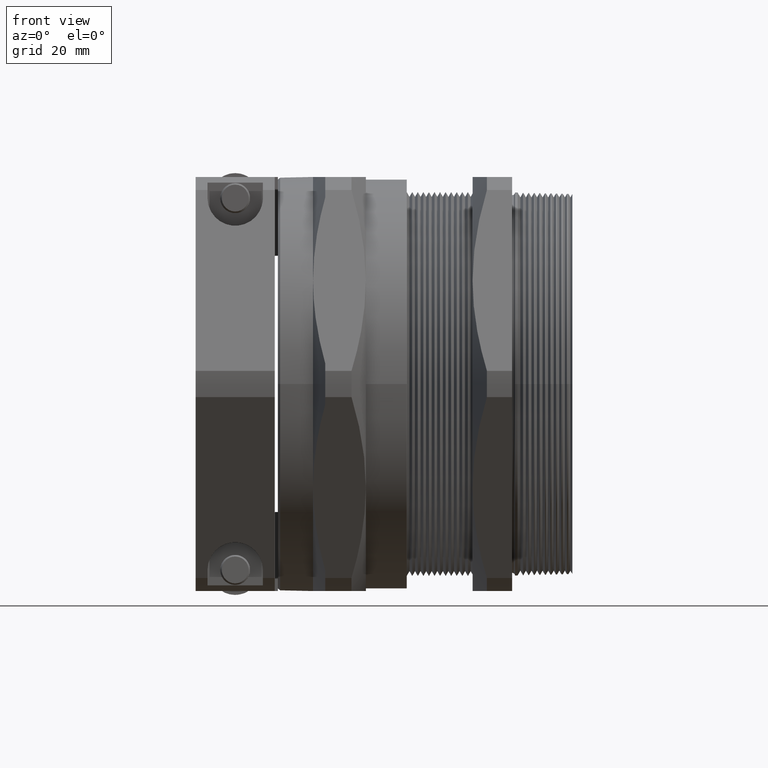
[diagram: clean part render]
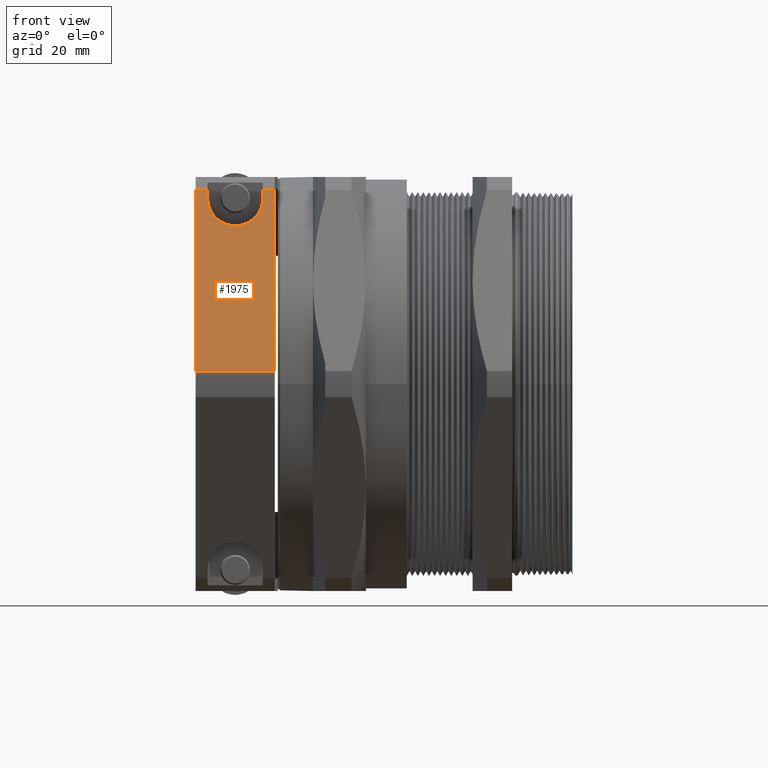
[diagram: same view with one face highlighted and labeled with its STEP entity id]
A machine part, front view. The second image highlights one B-rep face of the part: STEP entity #1975.
In plain terms, the highlighted planar face has unit normal (-0, -0.866, 0.5).
Its self-contained STEP definition (entity closure, byte-faithful):
#1943 = EDGE_CURVE ( 'NONE', #1968, #1944, #6847, .T. ) ;
#1944 = VERTEX_POINT ( 'NONE', #6843 ) ;
#1945 = ORIENTED_EDGE ( 'NONE', *, *, #1946, .F. ) ;
#1946 = EDGE_CURVE ( 'NONE', #1980, #1944, #6842, .T. ) ;
#1956 = VERTEX_POINT ( 'NONE', #6880 ) ;
#1957 = ORIENTED_EDGE ( 'NONE', *, *, #1958, .F. ) ;
#1958 = EDGE_CURVE ( 'NONE', #1959, #1956, #6879, .T. ) ;
#1959 = VERTEX_POINT ( 'NONE', #6875 ) ;
#1960 = ORIENTED_EDGE ( 'NONE', *, *, #1961, .F. ) ;
#1961 = EDGE_CURVE ( 'NONE', #1962, #1959, #6874, .T. ) ;
#1962 = VERTEX_POINT ( 'NONE', #6870 ) ;
#1963 = ORIENTED_EDGE ( 'NONE', *, *, #1964, .F. ) ;
#1964 = EDGE_CURVE ( 'NONE', #1965, #1962, #6869, .T. ) ;
#1965 = VERTEX_POINT ( 'NONE', #6865 ) ;
#1966 = ORIENTED_EDGE ( 'NONE', *, *, #1967, .T. ) ;
#1967 = EDGE_CURVE ( 'NONE', #1965, #1968, #6864, .T. ) ;
#1968 = VERTEX_POINT ( 'NONE', #6860 ) ;
#1975 = ADVANCED_FACE ( 'NONE', ( #6907 ), #6906, .T. ) ;
#1976 = EDGE_LOOP ( 'NONE', ( #1977, #1981, #1957, #1960, #1963, #1966, #2027, #1945 ) ) ;
#1977 = ORIENTED_EDGE ( 'NONE', *, *, #1978, .F. ) ;
#1978 = EDGE_CURVE ( 'NONE', #1979, #1980, #6901, .T. ) ;
#1979 = VERTEX_POINT ( 'NONE', #6897 ) ;
#1980 = VERTEX_POINT ( 'NONE', #6896 ) ;
#1981 = ORIENTED_EDGE ( 'NONE', *, *, #1982, .F. ) ;
#1982 = EDGE_CURVE ( 'NONE', #1956, #1979, #6894, .T. ) ;
#2027 = ORIENTED_EDGE ( 'NONE', *, *, #1943, .T. ) ;
#6839 = DIRECTION ( 'NONE',  ( 1.000000000000000000, -3.248221276105107800E-019, 0.0000000000000000000 ) ) ;
#6840 = VECTOR ( 'NONE', #6839, 39.37007874015748100 ) ;
#6841 = CARTESIAN_POINT ( 'NONE',  ( -5.773102463107272300, -0.8225388993649324100, 1.255320835098153300 ) ) ;
#6842 = LINE ( 'NONE', #6841, #6840 ) ;
#6843 = CARTESIAN_POINT ( 'NONE',  ( -0.9732499999999998400, -0.8225388993649324100, 1.255320835098153300 ) ) ;
#6844 = DIRECTION ( 'NONE',  ( 1.624110638052552900E-019, 0.4999999999999996100, 0.8660254037844388200 ) ) ;
#6845 = VECTOR ( 'NONE', #6844, 39.37007874015748100 ) ;
#6846 = CARTESIAN_POINT ( 'NONE',  ( -0.9732499999999998400, -0.9442240410711483200, 1.044555987136769100 ) ) ;
#6847 = LINE ( 'NONE', #6846, #6845 ) ;
#6860 = CARTESIAN_POINT ( 'NONE',  ( -0.9732499999999998400, -1.498409182777363300, 0.08467916490184548800 ) ) ;
#6861 = DIRECTION ( 'NONE',  ( 1.000000000000000000, -3.248221276105107800E-019, 0.0000000000000000000 ) ) ;
#6862 = VECTOR ( 'NONE', #6861, 39.37007874015748100 ) ;
#6863 = CARTESIAN_POINT ( 'NONE',  ( -5.773102463107272300, -1.498409182777363300, 0.08467916490184548800 ) ) ;
#6864 = LINE ( 'NONE', #6863, #6862 ) ;
#6865 = CARTESIAN_POINT ( 'NONE',  ( -1.485749999999999900, -1.498409182777363300, 0.08467916490184555800 ) ) ;
#6866 = DIRECTION ( 'NONE',  ( 1.624110638052552900E-019, 0.4999999999999996100, 0.8660254037844388200 ) ) ;
#6867 = VECTOR ( 'NONE', #6866, 39.37007874015748100 ) ;
#6868 = CARTESIAN_POINT ( 'NONE',  ( -1.485749999999999900, -0.8225388993649324100, 1.255320835098153300 ) ) ;
#6869 = LINE ( 'NONE', #6868, #6867 ) ;
#6870 = CARTESIAN_POINT ( 'NONE',  ( -1.485749999999999900, -0.8225388993649324100, 1.255320835098153300 ) ) ;
#6871 = DIRECTION ( 'NONE',  ( 1.000000000000000000, -3.248221276105107800E-019, 0.0000000000000000000 ) ) ;
#6872 = VECTOR ( 'NONE', #6871, 39.37007874015748100 ) ;
#6873 = CARTESIAN_POINT ( 'NONE',  ( -5.773102463107272300, -0.8225388993649324100, 1.255320835098153300 ) ) ;
#6874 = LINE ( 'NONE', #6873, #6872 ) ;
#6875 = CARTESIAN_POINT ( 'NONE',  ( -1.408874999999999900, -0.8225388993649324100, 1.255320835098153300 ) ) ;
#6876 = DIRECTION ( 'NONE',  ( -1.731109581798148400E-015, -0.4999999999999996100, -0.8660254037844388200 ) ) ;
#6877 = VECTOR ( 'NONE', #6876, 39.37007874015748100 ) ;
#6878 = CARTESIAN_POINT ( 'NONE',  ( -1.408874999999999900, -0.8225388993649362900, 1.255320835098146800 ) ) ;
#6879 = LINE ( 'NONE', #6878, #6877 ) ;
#6880 = CARTESIAN_POINT ( 'NONE',  ( -1.408874999999999900, -0.8525538975033475400, 1.203333333333333100 ) ) ;
#6890 = CARTESIAN_POINT ( 'NONE',  ( -1.050124999999999800, -0.8525538975033475400, 1.203333333333333100 ) ) ;
#6891 = CARTESIAN_POINT ( 'NONE',  ( -1.050124999999999500, -1.059678306575125400, 0.8445833333333331300 ) ) ;
#6892 = CARTESIAN_POINT ( 'NONE',  ( -1.408874999999999900, -1.059678306575125400, 0.8445833333333331300 ) ) ;
#6893 = CARTESIAN_POINT ( 'NONE',  ( -1.408874999999999900, -0.8525538975033475400, 1.203333333333333100 ) ) ;
#6894 =( BOUNDED_CURVE ( )  B_SPLINE_CURVE ( 3, ( #6893, #6892, #6891, #6890 ),
 .UNSPECIFIED., .F., .T. ) 
 B_SPLINE_CURVE_WITH_KNOTS ( ( 4, 4 ),
 ( 1.570796326794896600, 4.712388980384689700 ),
 .UNSPECIFIED. ) 
 CURVE ( )  GEOMETRIC_REPRESENTATION_ITEM ( )  RATIONAL_B_SPLINE_CURVE ( ( 1.000000000000000000, 0.3333333333333333100, 0.3333333333333333100, 1.000000000000000000 ) ) 
 REPRESENTATION_ITEM ( '' )  );
#6896 = CARTESIAN_POINT ( 'NONE',  ( -1.050124999999999800, -0.8225388993649324100, 1.255320835098153300 ) ) ;
#6897 = CARTESIAN_POINT ( 'NONE',  ( -1.050124999999999800, -0.8525538975033475400, 1.203333333333333100 ) ) ;
#6898 = DIRECTION ( 'NONE',  ( -1.731109581798148400E-015, 0.4999999999999996100, 0.8660254037844388200 ) ) ;
#6899 = VECTOR ( 'NONE', #6898, 39.37007874015748100 ) ;
#6900 = CARTESIAN_POINT ( 'NONE',  ( -1.050124999999999800, -0.8225388993649284100, 1.255320835098160400 ) ) ;
#6901 = LINE ( 'NONE', #6900, #6899 ) ;
#6902 = DIRECTION ( 'NONE',  ( 0.0000000000000000000, -0.4999999999999996100, -0.8660254037844388200 ) ) ;
#6903 = DIRECTION ( 'NONE',  ( -2.813042142220130900E-019, -0.8660254037844388200, 0.4999999999999996100 ) ) ;
#6904 = CARTESIAN_POINT ( 'NONE',  ( -5.773102463107272300, -0.8225388993649324100, 1.255320835098153300 ) ) ;
#6905 = AXIS2_PLACEMENT_3D ( 'NONE', #6904, #6903, #6902 ) ;
#6906 = PLANE ( 'NONE',  #6905 ) ;
#6907 = FACE_OUTER_BOUND ( 'NONE', #1976, .T. ) ;